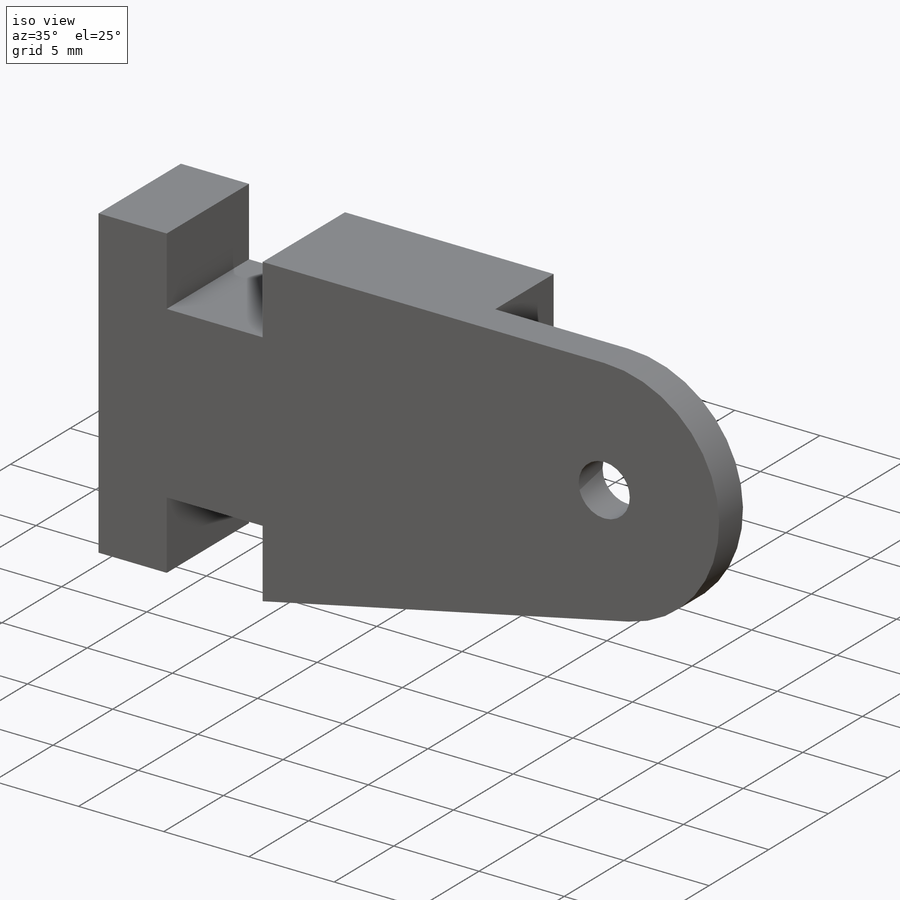
[diagram: iso view]
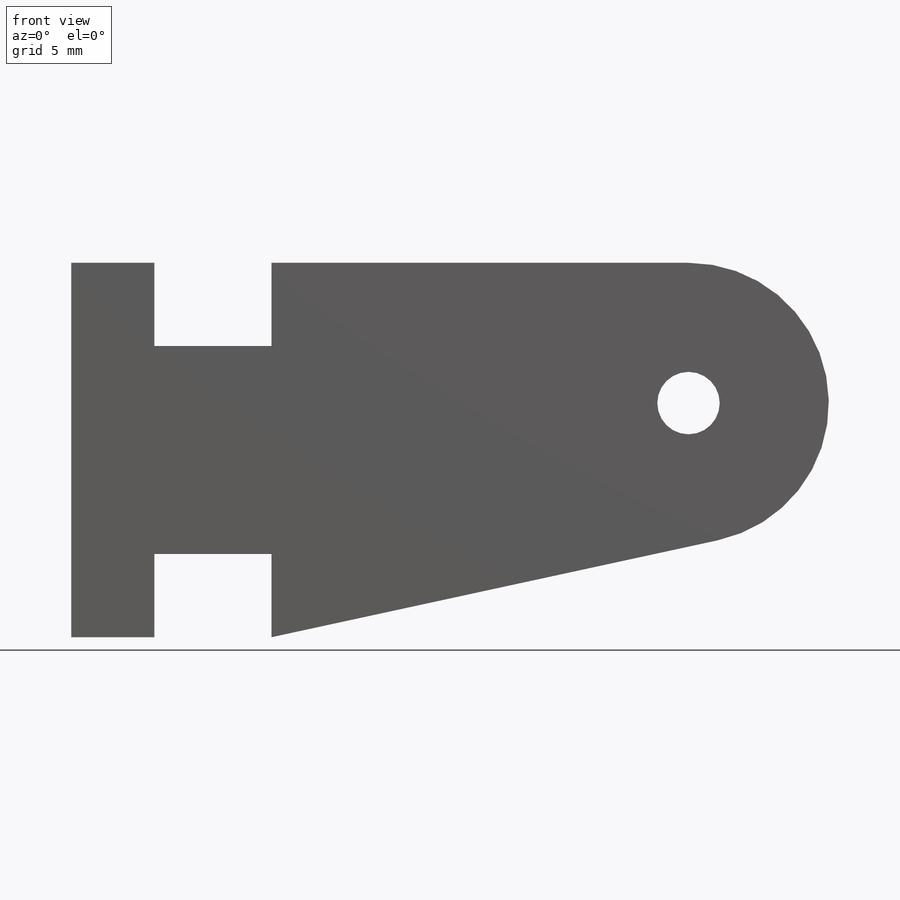
[diagram: front view]
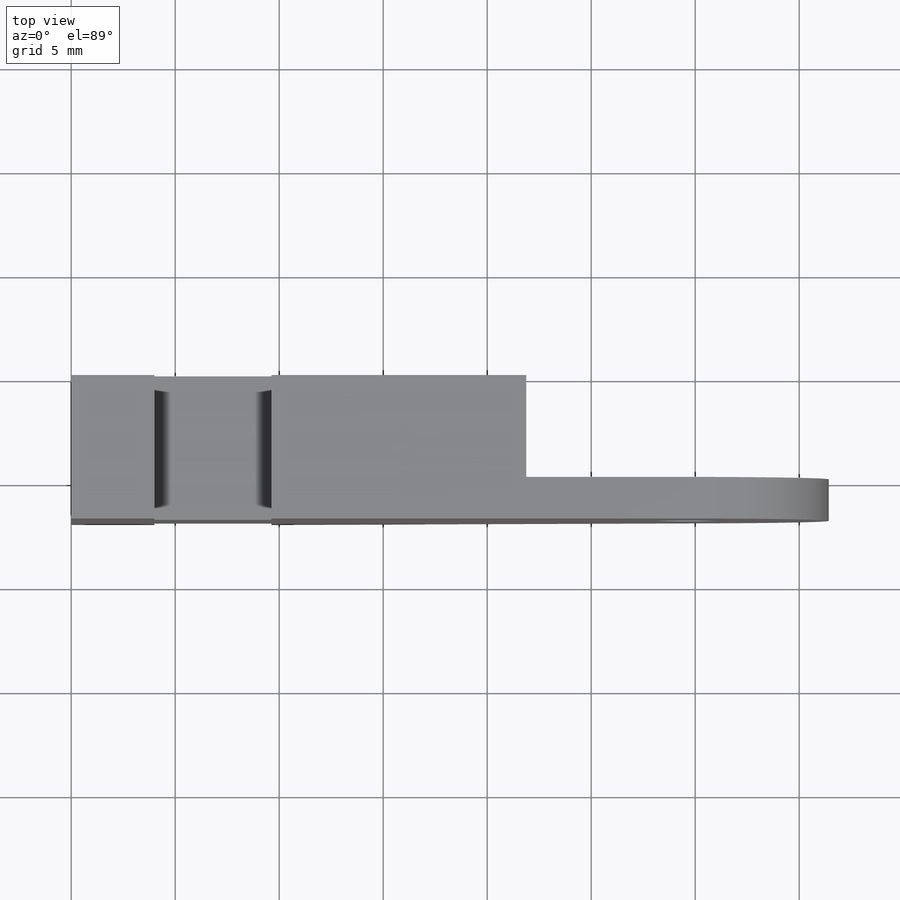
[diagram: top view]
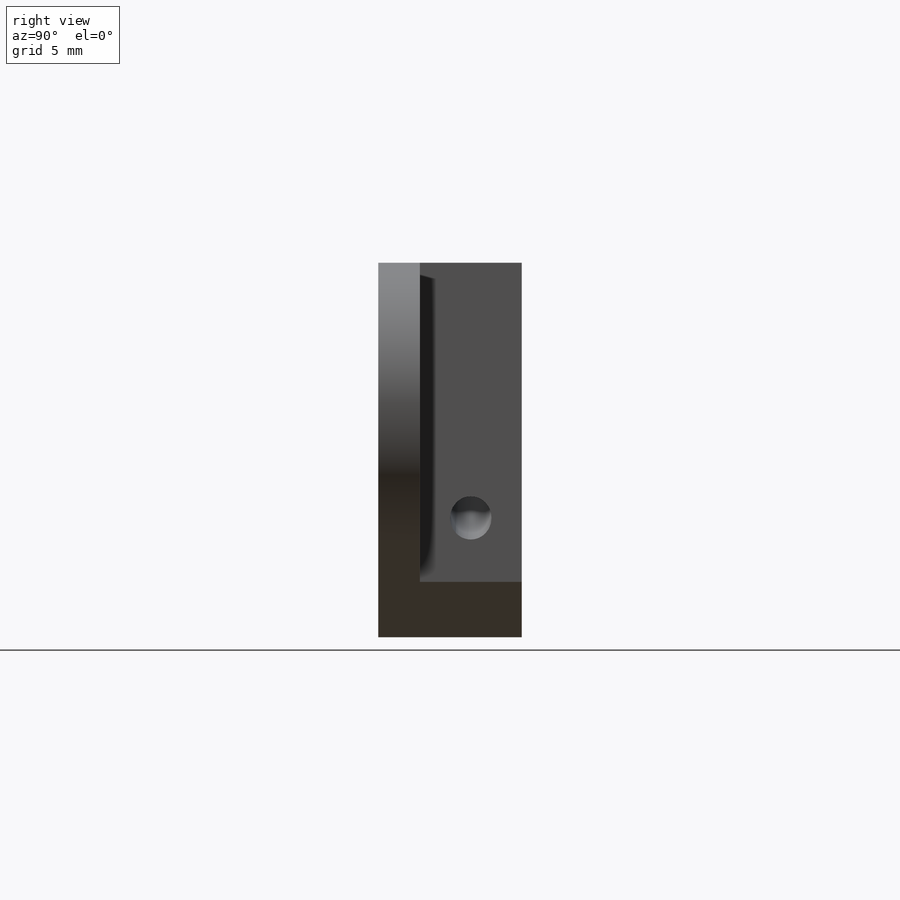
[diagram: right view]
SOLIDWORKS PART (.sldprt)
format: sldprt  version: not decoded by parser v0  size: 266,752 bytes
history: native  units: mm
features: sketch x4, cut_extrude x3, material x1, extrude x1, plane x1 (+13 scaffold rows collapsed)
feature tree (23):
  scaffold x13  (default folders/planes/origin — collapsed)
  material  "Material <not specified>"
  sketch  "Sketch1"  dims[c1.D16=6.0mm c1.D19=~5.000026mm c1.D15=~7.000026mm c1.D17=~7.000026mm c2.D15=3.0mm c2.D16=~6.745044mm c2.D1=3.0mm c2.D2=~6.745044mm c2.D12=24.24mm c3.D1=3.0mm c3.D2=24.24mm c3.D3=~6.745044mm c4.D1=19.42mm c4.D2=3.92mm c4.D3=4.0mm c4.D4=4.0mm c4.D5=4.0mm c4.D6=4.0mm c4.D7=3.5mm c4.D8=8.0mm c4.D9=3.92mm c4.D10=4.0mm c4.D11=4.0mm c4.D12=4.0mm c4.D13=7.11mm c4.D14=8.0mm c4.D15=4.0mm c4.D17=~15.899293mm c4.D18=~12.521516mm c5.D2=18.0mm c5.D3=~5.631516mm c5.D4=4.0mm c5.D5=14.0mm c5.D7=~17.261962mm c5.D8=1.81mm c5.D9=5.0mm c5.D10=2.0mm c5.D11=2.0mm c5.D13=5.0mm c5.D14=5.0mm c5.D15=2.0mm c6.D7=4.0mm c6.D8=~3.999647mm c6.D14=5.0mm c6.D5=~15.501493mm c6.D17=2.5mm c6.D3=4.0mm c6.D4=~5.38718mm c7.D5=~6.255421mm c7.D6=~7.356796mm c7.D7=~8.225037mm c7.D8=~9.631516mm c7.D9=~12.280835mm c7.D10=~13.149075mm c7.D11=~14.25045mm c7.D12=~15.118691mm c7.D13=~25.132963mm c7.D14=~26.920391mm c7.D4=~5.38718mm c8.D5=~6.255421mm c8.D6=~7.356796mm c8.D7=~12.280835mm c8.D9=~3.999659mm c8.D10=~5.538699mm c8.D11=~5.885996mm c8.D12=~6.744703mm c8.D15=~6.754237mm c8.D16=~7.101533mm c8.D17=~10.462738mm c8.D18=~10.810034mm c8.D19=~11.678275mm c8.D20=~12.025572mm c8.D21=~13.248604mm c8.D22=14.0mm c8.D23=18.0mm c8.D24=~0.000341mm c9.D9=~3.999659mm c9.D10=~5.538699mm c9.D11=~5.885996mm c9.ThumbLinkLengthMCP=20.045mm c9.D8=~18.000341mm c10.D9=~5.631516mm c10.D13=~9.631516mm c10.D4=4.0mm c10.D5=~9.631516mm c10.D6=~29.676516mm c10.D7=~31.107928mm c10.ThumbLinkLengthMCP=20.045mm]
  extrude  "Boss-Extrude1"  Depth=6.9mm
  sketch  "Sketch4"  dims[D1=~21.876472mm]
  cut_extrude  "Cut-Extrude2"  Depth=4.9mm
  sketch  "Sketch5"  dims[c1.D1=~1.623995mm c1.D3=2.0mm c2.D1=4.45mm c2.D2=8.0mm c3.D1=8.0mm c3.D2=2.45mm]
  cut_extrude  "Cut-Extrude3"  Depth=14mm
  plane  "Plane1"
  sketch  "Sketch8"  dims[D1=10.0mm D2=11.2mm D3=2.45mm]
  cut_extrude  "Cut-Extrude5"  Depth=17mm
decode coverage: 8 of 8 modeling features carry decoded parameters
note: ~ marks probable driven/reference dimensions
note: suppression state not decoded; provenance and decode notes live in map.json
